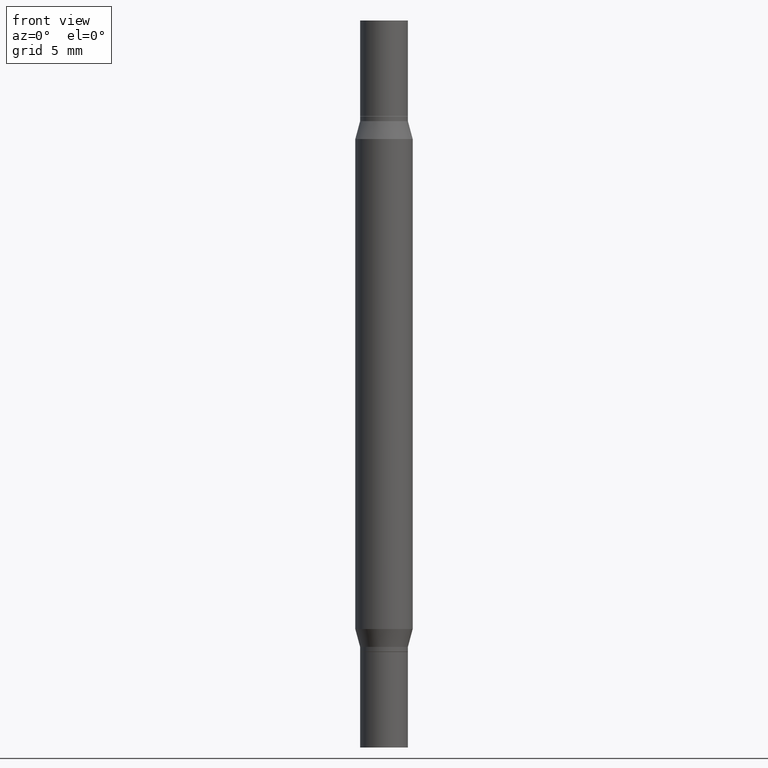
[diagram: clean part render]
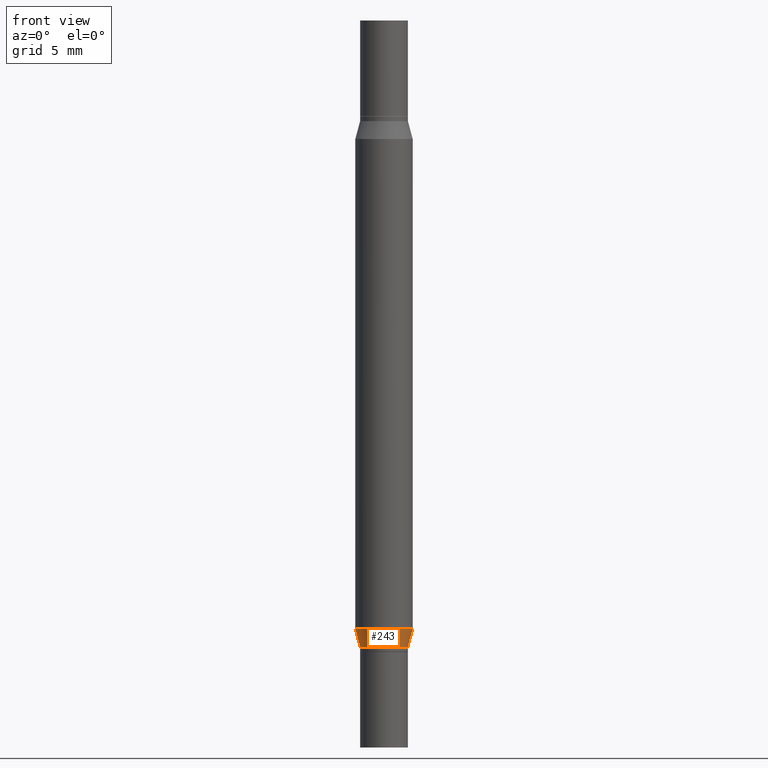
[diagram: same view with one face highlighted and labeled with its STEP entity id]
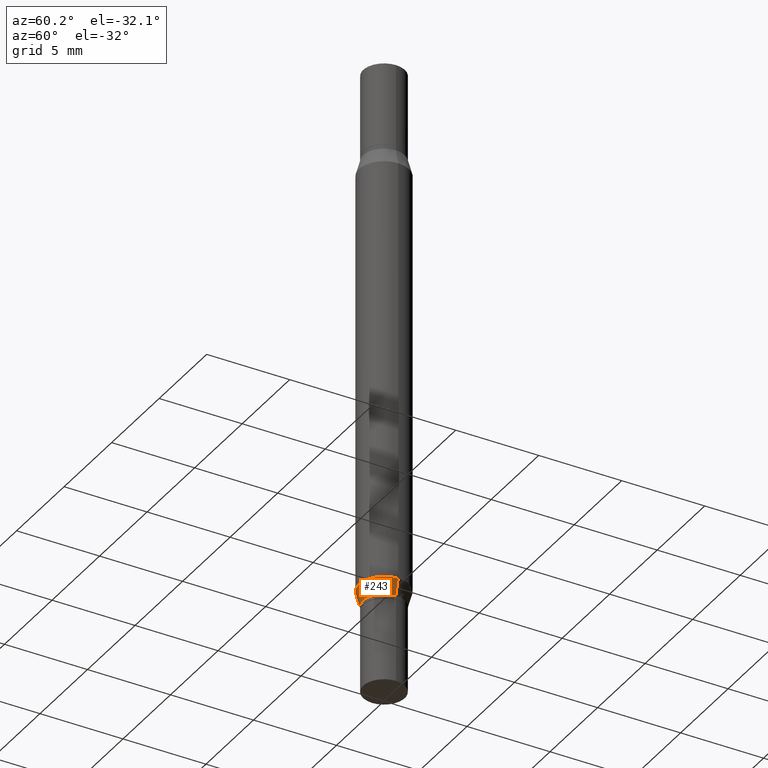
[diagram: same view with one face highlighted and labeled with its STEP entity id]
A machine part, front view. The second image highlights one B-rep face of the part: STEP entity #243.
A second angle (auxiliary view) of the same face is appended — the face is thin or edge-on in the first view.
In plain terms, the highlighted conical surface has half-angle 15 deg.
Its self-contained STEP definition (entity closure, byte-faithful):
#8 = VERTEX_POINT ( 'NONE', #570 ) ;
#50 = LINE ( 'NONE', #377, #950 ) ;
#75 = VERTEX_POINT ( 'NONE', #915 ) ;
#81 = CARTESIAN_POINT ( 'NONE',  ( 3.152453838053259548E-29, -4.500868593902698784E-15, -1.289099999999999913 ) ) ;
#100 = VECTOR ( 'NONE', #650, 39.37007874015747433 ) ;
#188 = CIRCLE ( 'NONE', #462, 0.05904999999999999832 ) ;
#231 = CONICAL_SURFACE ( 'NONE', #842, 0.04919999999999993823, 0.2617993877991500740 ) ;
#233 = CARTESIAN_POINT ( 'NONE',  ( 3.062556691798133272E-29, -4.372519294262821742E-15, -1.252339299545446316 ) ) ;
#243 = ADVANCED_FACE ( 'NONE', ( #727 ), #231, .T. ) ;
#248 = DIRECTION ( 'NONE',  ( 1.000000000000000000, -6.982962677686270655E-15, 0.000000000000000000 ) ) ;
#271 = EDGE_CURVE ( 'NONE', #854, #644, #50, .T. ) ;
#314 = CIRCLE ( 'NONE', #782, 0.04919999999999993823 ) ;
#320 = EDGE_CURVE ( 'NONE', #75, #644, #188, .T. ) ;
#327 = CARTESIAN_POINT ( 'NONE',  ( 0.04919999999999993823, -4.844430357644862519E-15, -1.289099999999999913 ) ) ;
#328 = ORIENTED_EDGE ( 'NONE', *, *, #271, .T. ) ;
#334 = LINE ( 'NONE', #342, #100 ) ;
#342 = CARTESIAN_POINT ( 'NONE',  ( -0.04919999999999993823, -4.151281567908730128E-15, -1.289099999999999913 ) ) ;
#359 = DIRECTION ( 'NONE',  ( -2.445468806185136597E-29, 3.491481338843145583E-15, 1.000000000000000000 ) ) ;
#371 = EDGE_CURVE ( 'NONE', #8, #854, #314, .T. ) ;
#377 = CARTESIAN_POINT ( 'NONE',  ( 0.04919999999999993823, -4.844430357644862519E-15, -1.289099999999999913 ) ) ;
#398 = EDGE_LOOP ( 'NONE', ( #744, #947, #328, #757 ) ) ;
#462 = AXIS2_PLACEMENT_3D ( 'NONE', #233, #612, #474 ) ;
#474 = DIRECTION ( 'NONE',  ( 1.000000000000000000, -6.982962677686273021E-15, 0.000000000000000000 ) ) ;
#510 = CARTESIAN_POINT ( 'NONE',  ( 0.05904999999999999832, -4.784863240380196662E-15, -1.252339299545446316 ) ) ;
#519 = CARTESIAN_POINT ( 'NONE',  ( 3.152453838053259548E-29, -4.500868593902698784E-15, -1.289099999999999913 ) ) ;
#570 = CARTESIAN_POINT ( 'NONE',  ( -0.04919999999999993823, -4.168040678335177351E-15, -1.289099999999999913 ) ) ;
#612 = DIRECTION ( 'NONE',  ( -2.445468806185136597E-29, 3.491481338843145583E-15, 1.000000000000000000 ) ) ;
#616 = DIRECTION ( 'NONE',  ( -2.445468806185136597E-29, 3.491481338843145583E-15, 1.000000000000000000 ) ) ;
#644 = VERTEX_POINT ( 'NONE', #510 ) ;
#650 = DIRECTION ( 'NONE',  ( -0.2588190451025213501, 5.211531920934551042E-15, 0.9659258262890682012 ) ) ;
#679 = EDGE_CURVE ( 'NONE', #8, #75, #334, .T. ) ;
#727 = FACE_OUTER_BOUND ( 'NONE', #398, .T. ) ;
#744 = ORIENTED_EDGE ( 'NONE', *, *, #679, .F. ) ;
#757 = ORIENTED_EDGE ( 'NONE', *, *, #320, .F. ) ;
#782 = AXIS2_PLACEMENT_3D ( 'NONE', #81, #616, #248 ) ;
#842 = AXIS2_PLACEMENT_3D ( 'NONE', #519, #359, #972 ) ;
#854 = VERTEX_POINT ( 'NONE', #327 ) ;
#905 = DIRECTION ( 'NONE',  ( 0.2588190451025213501, 1.565188264969621968E-15, 0.9659258262890682012 ) ) ;
#915 = CARTESIAN_POINT ( 'NONE',  ( -0.05904999999999999832, -2.206690208753205666E-15, -1.252339299545446316 ) ) ;
#947 = ORIENTED_EDGE ( 'NONE', *, *, #371, .T. ) ;
#950 = VECTOR ( 'NONE', #905, 39.37007874015747433 ) ;
#972 = DIRECTION ( 'NONE',  ( 1.000000000000000000, -6.982962677686270655E-15, 0.000000000000000000 ) ) ;